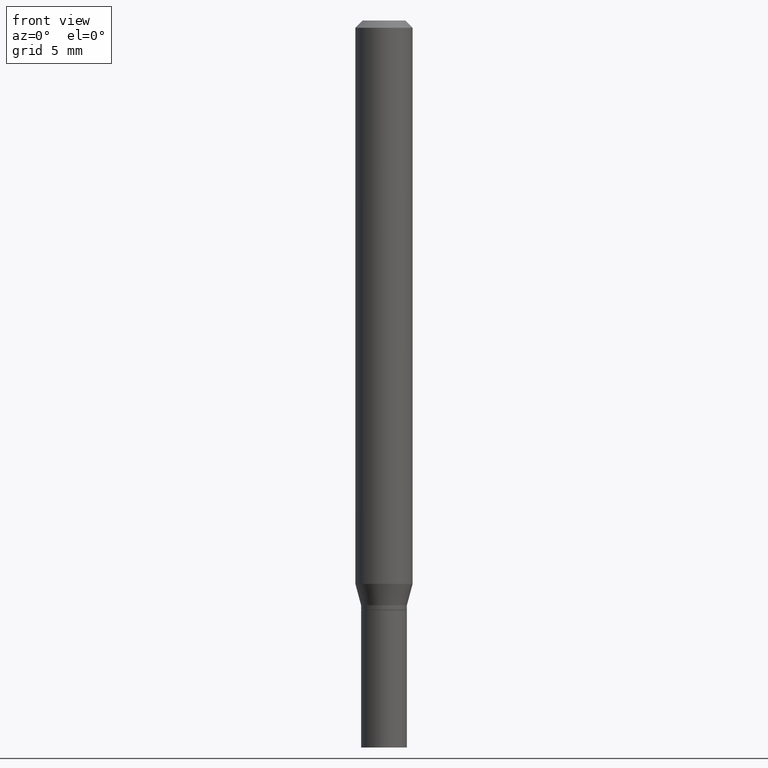
[diagram: clean part render]
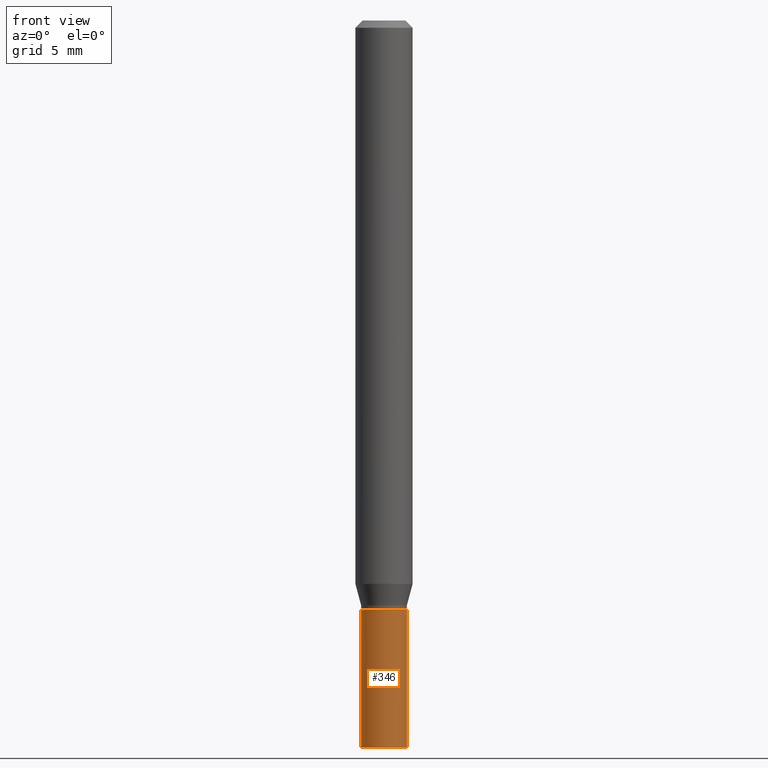
[diagram: same view with one face highlighted and labeled with its STEP entity id]
A machine part, front view. The second image highlights one B-rep face of the part: STEP entity #346.
In plain terms, the highlighted cylindrical surface (edge-blend (fillet) strip) has radius 1.2001 mm, axis along (-0, 0, 1).
Its self-contained STEP definition (entity closure, byte-faithful):
#29 = VECTOR ( 'NONE', #148, 39.37007874015748143 ) ;
#30 = CARTESIAN_POINT ( 'NONE',  ( 3.668203209277704895E-29, -5.237222008264718177E-15, -1.500000000000000222 ) ) ;
#33 = AXIS2_PLACEMENT_3D ( 'NONE', #271, #94, #312 ) ;
#40 = VECTOR ( 'NONE', #166, 39.37007874015748143 ) ;
#58 = LINE ( 'NONE', #89, #40 ) ;
#83 = ORIENTED_EDGE ( 'NONE', *, *, #288, .T. ) ;
#87 = DIRECTION ( 'NONE',  ( 1.000000000000000000, -6.982962677686256455E-15, 0.000000000000000000 ) ) ;
#89 = CARTESIAN_POINT ( 'NONE',  ( -0.04724999999999999339, 3.357314426466472909E-16, -2.324196830145442815E-30 ) ) ;
#94 = DIRECTION ( 'NONE',  ( -2.445468806185136597E-29, 3.491481338843145583E-15, 1.000000000000000000 ) ) ;
#130 = VERTEX_POINT ( 'NONE', #259 ) ;
#148 = DIRECTION ( 'NONE',  ( -2.445468806185136877E-29, 3.491481338843145188E-15, 1.000000000000000000 ) ) ;
#166 = DIRECTION ( 'NONE',  ( -2.445468806185136877E-29, 3.491481338843145188E-15, 1.000000000000000000 ) ) ;
#177 = EDGE_CURVE ( 'NONE', #424, #130, #361, .T. ) ;
#189 = ORIENTED_EDGE ( 'NONE', *, *, #177, .T. ) ;
#192 = CARTESIAN_POINT ( 'NONE',  ( -0.04724999999999999339, -4.406573085837055149E-15, -1.216500000000000137 ) ) ;
#232 = DIRECTION ( 'NONE',  ( -2.445468806185136597E-29, 3.491481338843145583E-15, 1.000000000000000000 ) ) ;
#239 = CARTESIAN_POINT ( 'NONE',  ( 0.04724999999999999339, -5.567166994785394973E-15, -1.500000000000000222 ) ) ;
#244 = CIRCLE ( 'NONE', #284, 0.04724999999999999339 ) ;
#258 = CIRCLE ( 'NONE', #378, 0.04724999999999999339 ) ;
#259 = CARTESIAN_POINT ( 'NONE',  ( 0.04724999999999999339, -4.577332035223362218E-15, -1.216500000000000137 ) ) ;
#262 = ORIENTED_EDGE ( 'NONE', *, *, #283, .F. ) ;
#266 = CARTESIAN_POINT ( 'NONE',  ( 2.974912802724219302E-29, -4.247387048702686999E-15, -1.216500000000000137 ) ) ;
#271 = CARTESIAN_POINT ( 'NONE',  ( 0.000000000000000000, 0.000000000000000000, 0.000000000000000000 ) ) ;
#281 = ORIENTED_EDGE ( 'NONE', *, *, #292, .F. ) ;
#283 = EDGE_CURVE ( 'NONE', #339, #130, #244, .T. ) ;
#284 = AXIS2_PLACEMENT_3D ( 'NONE', #266, #327, #87 ) ;
#288 = EDGE_CURVE ( 'NONE', #374, #424, #258, .T. ) ;
#292 = EDGE_CURVE ( 'NONE', #374, #339, #58, .T. ) ;
#312 = DIRECTION ( 'NONE',  ( 1.000000000000000000, -6.982962677686266711E-15, 4.876176775795936353E-29 ) ) ;
#327 = DIRECTION ( 'NONE',  ( -2.445468806185136597E-29, 3.491481338843145583E-15, 1.000000000000000000 ) ) ;
#336 = CARTESIAN_POINT ( 'NONE',  ( -0.04724999999999999339, -4.406573085837055149E-15, -1.500000000000000222 ) ) ;
#339 = VERTEX_POINT ( 'NONE', #192 ) ;
#340 = FACE_OUTER_BOUND ( 'NONE', #457, .T. ) ;
#346 = ADVANCED_FACE ( 'NONE', ( #340 ), #458, .T. ) ;
#361 = LINE ( 'NONE', #402, #29 ) ;
#373 = DIRECTION ( 'NONE',  ( 1.000000000000000000, -6.982962677686266711E-15, 0.000000000000000000 ) ) ;
#374 = VERTEX_POINT ( 'NONE', #336 ) ;
#378 = AXIS2_PLACEMENT_3D ( 'NONE', #30, #232, #373 ) ;
#402 = CARTESIAN_POINT ( 'NONE',  ( 0.04724999999999999339, -3.299449865206760567E-16, 2.303993526563579480E-30 ) ) ;
#424 = VERTEX_POINT ( 'NONE', #239 ) ;
#457 = EDGE_LOOP ( 'NONE', ( #281, #83, #189, #262 ) ) ;
#458 = CYLINDRICAL_SURFACE ( 'NONE', #33, 0.04724999999999999339 ) ;